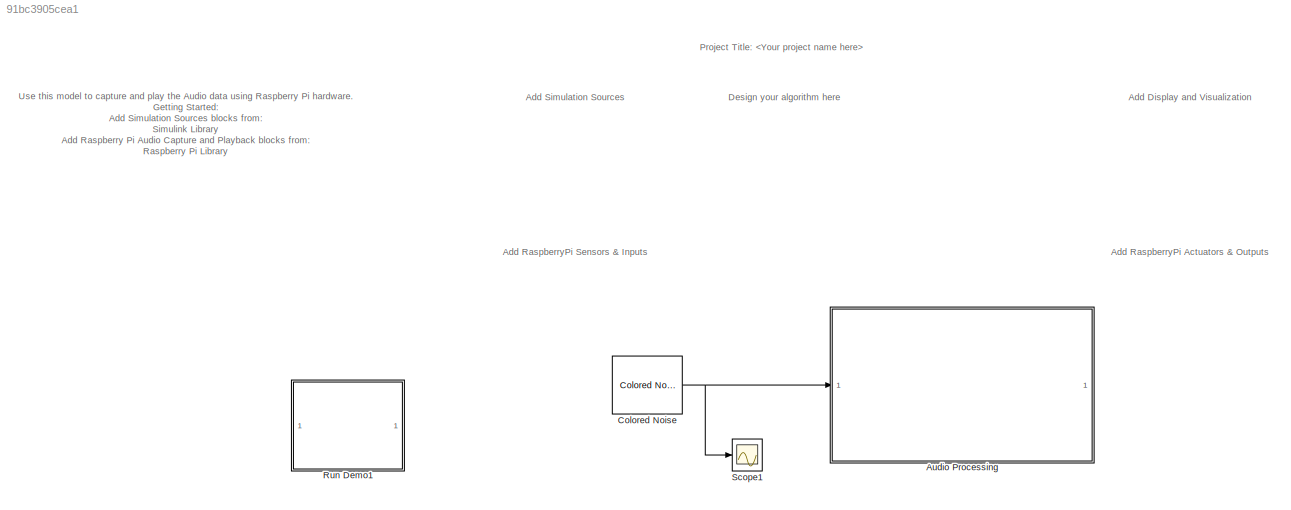
MODEL slx_91bc3905cea1
KIND model
CONFIG AbsTol = auto
CONFIG EnableMultiTasking = on
CONFIG FixedStep = auto
CONFIG MaxStep = auto
CONFIG MinStep = auto
CONFIG RelTol = 1e-3
CONFIG SampleTimeConstraint = Unconstrained
CONFIG SolverName = ode45
CONFIG StartTime = 0.0
CONFIG StopTime = 10.0
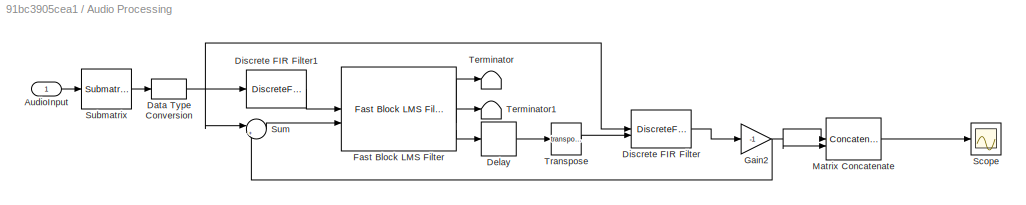
BLOCK [SubSystem] Audio Processing
BLOCK [Inport] Audio Processing/AudioInput
BLOCK [DataTypeConversion] Audio Processing/Data Type Conversion
  OutDataTypeStr = double
  RndMeth = Floor
  SaturateOnIntegerOverflow = off
BLOCK [Delay] Audio Processing/Delay
  DelayLength = 1
  InitialCondition = 0
  InputPortMap = u0
BLOCK [DiscreteFir] Audio Processing/Discrete FIR Filter
  CoefSource = Input port
  InputPortMap = u0,u1
  OutputPortMap = o0
BLOCK [DiscreteFir] Audio Processing/Discrete FIR Filter1
  Coefficients = [0.466  0.533  -0.257  -0.274  -0.231  -0.175]
  Commented = through
  InputPortMap = u0
  OutputPortMap = o0
BLOCK [Reference] Audio Processing/Fast Block LMS Filter  REF=dspadpt3/Fast Block LMS Filter
  SourceBlock = dspadpt3/Fast Block LMS Filter
  SourceType = Fast Block LMS Filter
BLOCK [Gain] Audio Processing/Gain2
  Gain = -1
  OutDataTypeStr = double
BLOCK [Concatenate] Audio Processing/Matrix Concatenate
  ConcatenateDimension = 2
  Mode = Multidimensional array
BLOCK [Scope] Audio Processing/Scope
  Floating = off
  NumInputPorts = 1
  ScopeSpecificationString = Simulink.scopes.TimeScopeBlockCfg('CurrentConfiguration', extmgr.ConfigurationSet(extmgr.Configuration('Core','General UI',true),extmgr.Configuration('Core','Source UI',true),extmgr.Configuration('Sources','WiredSimulink',true,'DataLoggingVariableName','ScopeData1'),extmgr.Configuration('Visuals','Time Domain',true,'SerializedDisplays',{struct('MinYLimReal','-15958.48947','MaxYLimReal','16208.1821...<+2179ch>
BLOCK [Reference] Audio Processing/Submatrix  REF=matrix_library/Submatrix
  LibrarySourceBlock = simulink/Matrix\nOperations/Submatrix
  SourceBlock = matrix_library/Submatrix
  SourceType = Submatrix
BLOCK [Sum] Audio Processing/Sum
  Inputs = |+-
BLOCK [Terminator] Audio Processing/Terminator
BLOCK [Terminator] Audio Processing/Terminator1
BLOCK [Math] Audio Processing/Transpose
  Operator = transpose
BLOCK [Reference] Colored Noise  REF=dspsrcs4/Colored Noise
  LibrarySourceBlock = audiosources/Colored Noise
  SourceBlock = dspsrcs4/Colored Noise
  SourceType = dsp.simulink.ColoredNoise
BLOCK [SubSystem] Run Demo1
  Description = Controls host-side RTDX processing.
  ShowPortLabels = none
  UserDataPersistent = on
BLOCK [Scope] Scope1
  Floating = off
  NumInputPorts = 1
  ScopeSpecificationString = Simulink.scopes.TimeScopeBlockCfg('CurrentConfiguration', extmgr.ConfigurationSet(extmgr.Configuration('Core','General UI',true),extmgr.Configuration('Core','Source UI',true),extmgr.Configuration('Sources','WiredSimulink',true,'DataLoggingVariableName','ScopeData1'),extmgr.Configuration('Visuals','Time Domain',true,'SerializedDisplays',{struct('MinYLimReal','-5.6788','MaxYLimReal','5.95781','YLabe...<+2617ch>
ANNOTATION (root): Use this model to capture and play the Audio data using Raspberry Pi hardware. Getting Started: Add Simulation Sources blocks from: Simulink Library Add Raspberry Pi Audio Capture and Playback blocks from: Raspberry Pi Library Configure Raspberry Pi Hardware: Open Model Configuration Parameters dialog Under the Hardware Implementation option, select the Raspberry Pi hardware from the Hardware boar...<+155ch>
ANNOTATION (root): Add Display and Visualization
ANNOTATION (root): Add RaspberryPi Actuators & Outputs
ANNOTATION (root): Add RaspberryPi Sensors & Inputs
ANNOTATION (root): Add Simulation Sources
ANNOTATION (root): Design your algorithm here
ANNOTATION (root): Project Title:
LINE Audio Processing/AudioInput:1 -> Audio Processing/Submatrix:1
NET Audio Processing/Data Type Conversion:1 -> Audio Processing/Discrete FIR Filter1:1, Audio Processing/Discrete FIR Filter:1, Audio Processing/Sum:1
LINE Audio Processing/Delay:1 -> Audio Processing/Transpose:1
LINE Audio Processing/Discrete FIR Filter1:1 -> Audio Processing/Fast Block LMS Filter:1
LINE Audio Processing/Discrete FIR Filter:1 -> Audio Processing/Gain2:1
LINE Audio Processing/Fast Block LMS Filter:1 -> Audio Processing/Terminator:1
LINE Audio Processing/Fast Block LMS Filter:2 -> Audio Processing/Terminator1:1
LINE Audio Processing/Fast Block LMS Filter:3 -> Audio Processing/Delay:1
NET Audio Processing/Gain2:1 -> Audio Processing/Matrix Concatenate:1, Audio Processing/Matrix Concatenate:2, Audio Processing/Sum:2
LINE Audio Processing/Matrix Concatenate:1 -> Audio Processing/Scope:1
LINE Audio Processing/Submatrix:1 -> Audio Processing/Data Type Conversion:1
LINE Audio Processing/Sum:1 -> Audio Processing/Fast Block LMS Filter:2
LINE Audio Processing/Transpose:1 -> Audio Processing/Discrete FIR Filter:2
NET Colored Noise:1 -> Audio Processing:1, Scope1:1
note: NET lines group one-source signal fan-out (src -> all destinations, sorted); 1:1 wires keep LINE
